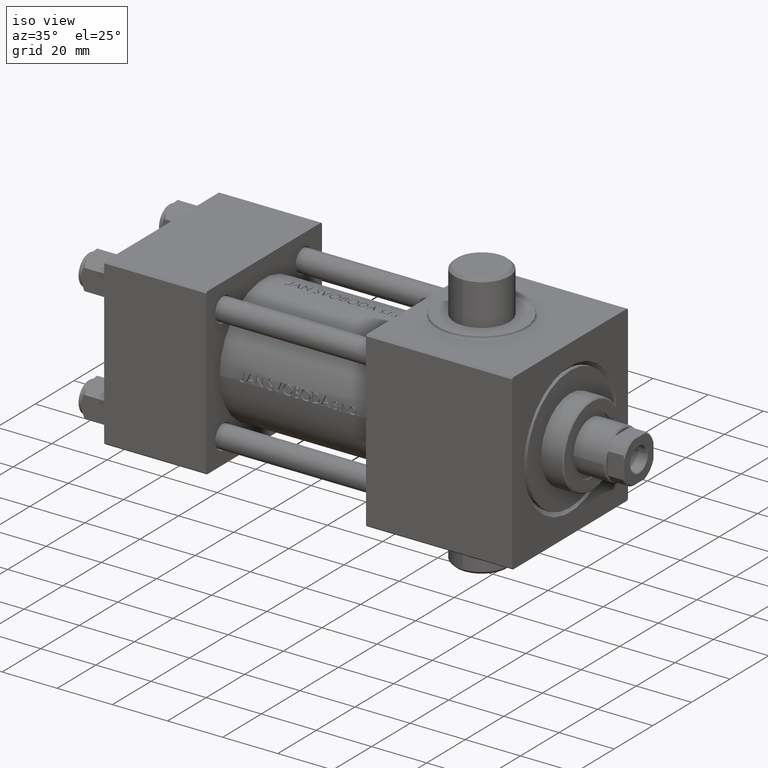
[diagram: clean part render]
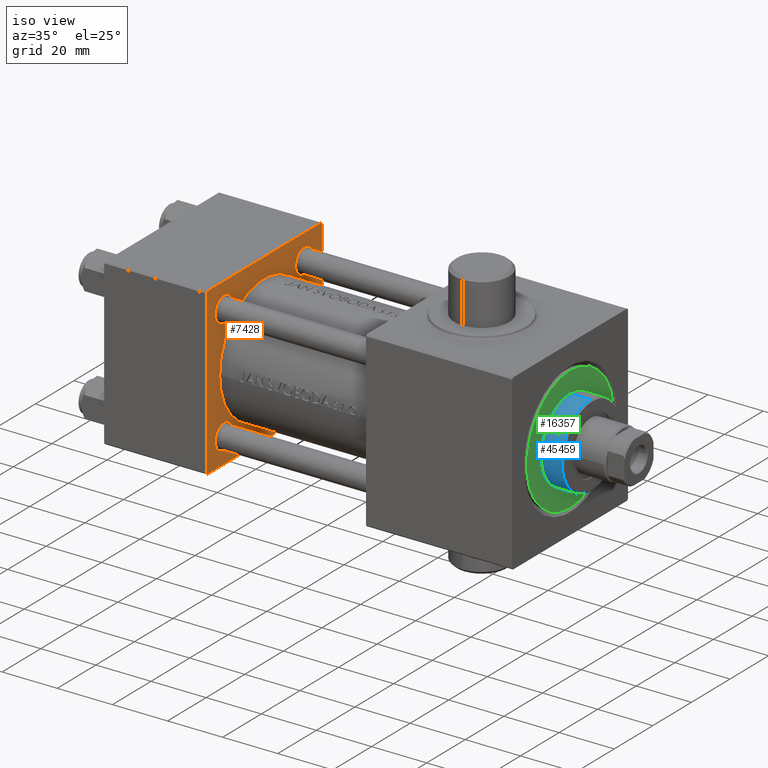
[diagram: same view with three faces highlighted in distinct colors, each labeled with its STEP entity id]
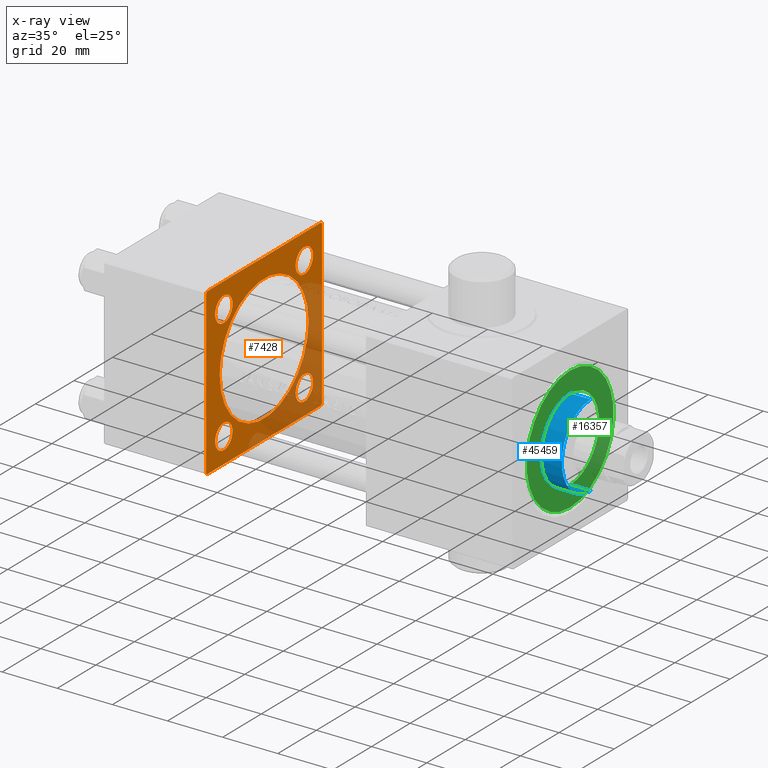
[diagram: x-ray of the same camera — body ghosted, the three highlighted faces saturated]
A machine part, iso view with three faces highlighted in distinct colors.
The next image is the same camera in x-ray (body ghosted, the three faces saturated) — at least one of them is partly hidden behind the body in this view.
Their STEP definitions:

[orange] entity #7428 — the highlighted planar face has unit normal (-1, 0, -0).
#67 = ORIENTED_EDGE ( 'NONE', *, *, #3686, .T. ) ;
#75 = CARTESIAN_POINT ( 'NONE',  ( 37.00000000000000000, -3.469446951953614189E-15, 23.00000000000000000 ) ) ;
#127 = DIRECTION ( 'NONE',  ( -1.000000000000000000, 0.000000000000000000, -0.000000000000000000 ) ) ;
#615 = AXIS2_PLACEMENT_3D ( 'NONE', #29216, #18208, #33197 ) ;
#736 = EDGE_CURVE ( 'NONE', #32184, #760, #26727, .T. ) ;
#760 = VERTEX_POINT ( 'NONE', #13759 ) ;
#784 = CARTESIAN_POINT ( 'NONE',  ( 37.00000000000000000, 20.84999999999999787, 16.34999999999998366 ) ) ;
#1944 = DIRECTION ( 'NONE',  ( 0.000000000000000000, 0.000000000000000000, 1.000000000000000000 ) ) ;
#2098 = VERTEX_POINT ( 'NONE', #75 ) ;
#2319 = VECTOR ( 'NONE', #23437, 999.9999999999998863 ) ;
#2339 = EDGE_CURVE ( 'NONE', #34306, #34837, #14060, .T. ) ;
#2457 = FACE_OUTER_BOUND ( 'NONE', #19431, .T. ) ;
#2641 = VERTEX_POINT ( 'NONE', #13784 ) ;
#2865 = CARTESIAN_POINT ( 'NONE',  ( 37.00000000000000000, -29.50000000000001066, -30.00000000000000711 ) ) ;
#3543 = AXIS2_PLACEMENT_3D ( 'NONE', #21004, #42569, #24760 ) ;
#3686 = EDGE_CURVE ( 'NONE', #17949, #20354, #24564, .T. ) ;
#3749 = AXIS2_PLACEMENT_3D ( 'NONE', #16486, #5954, #13434 ) ;
#3951 = ORIENTED_EDGE ( 'NONE', *, *, #24541, .T. ) ;
#4200 = LINE ( 'NONE', #22695, #23352 ) ;
#5173 = DIRECTION ( 'NONE',  ( 0.000000000000000000, -0.7071067811865474617, 0.7071067811865474617 ) ) ;
#5442 = EDGE_CURVE ( 'NONE', #35846, #34704, #24605, .T. ) ;
#5493 = FACE_BOUND ( 'NONE', #44097, .T. ) ;
#5954 = DIRECTION ( 'NONE',  ( -1.000000000000000000, 0.000000000000000000, -0.000000000000000000 ) ) ;
#6006 = CARTESIAN_POINT ( 'NONE',  ( 37.00000000000000000, -29.50000000000000000, -30.00000000000000711 ) ) ;
#6017 = ORIENTED_EDGE ( 'NONE', *, *, #736, .T. ) ;
#6246 = CARTESIAN_POINT ( 'NONE',  ( 37.00000000000000000, -20.84999999999999076, 25.35000000000002274 ) ) ;
#6326 = LINE ( 'NONE', #33991, #2319 ) ;
#6407 = FACE_BOUND ( 'NONE', #40236, .T. ) ;
#6931 = ORIENTED_EDGE ( 'NONE', *, *, #15888, .T. ) ;
#7213 = VERTEX_POINT ( 'NONE', #6006 ) ;
#7428 = ADVANCED_FACE ( 'NONE', ( #6407, #41561, #38048, #5493, #30795, #2457 ), #34075, .F. ) ;
#7700 = CARTESIAN_POINT ( 'NONE',  ( 37.00000000000000000, -30.00000000000000000, 29.49999999999999289 ) ) ;
#7989 = DIRECTION ( 'NONE',  ( 0.000000000000000000, 0.000000000000000000, 1.000000000000000000 ) ) ;
#8825 = CIRCLE ( 'NONE', #615, 4.500000000000017764 ) ;
#9265 = CARTESIAN_POINT ( 'NONE',  ( 37.00000000000000000, 20.84999999999999787, -20.85000000000000142 ) ) ;
#9300 = ORIENTED_EDGE ( 'NONE', *, *, #26738, .T. ) ;
#9422 = DIRECTION ( 'NONE',  ( -1.000000000000000000, 0.000000000000000000, -0.000000000000000000 ) ) ;
#9537 = VECTOR ( 'NONE', #5173, 1000.000000000000114 ) ;
#9643 = ORIENTED_EDGE ( 'NONE', *, *, #2339, .T. ) ;
#10054 = ORIENTED_EDGE ( 'NONE', *, *, #45348, .T. ) ;
#10233 = CARTESIAN_POINT ( 'NONE',  ( 37.00000000000000000, -29.49999999999998579, 29.99999999999999289 ) ) ;
#11241 = VERTEX_POINT ( 'NONE', #15436 ) ;
#11254 = DIRECTION ( 'NONE',  ( 1.000000000000000000, -0.000000000000000000, 0.000000000000000000 ) ) ;
#11368 = DIRECTION ( 'NONE',  ( -1.000000000000000000, 0.000000000000000000, -0.000000000000000000 ) ) ;
#11414 = AXIS2_PLACEMENT_3D ( 'NONE', #44854, #34093, #31047 ) ;
#11737 = DIRECTION ( 'NONE',  ( -1.000000000000000000, 0.000000000000000000, -0.000000000000000000 ) ) ;
#12100 = VECTOR ( 'NONE', #38298, 1000.000000000000000 ) ;
#12799 = CARTESIAN_POINT ( 'NONE',  ( 37.00000000000000000, -30.00000000000000000, -29.50000000000001776 ) ) ;
#13434 = DIRECTION ( 'NONE',  ( -0.000000000000000000, 0.000000000000000000, 1.000000000000000000 ) ) ;
#13759 = CARTESIAN_POINT ( 'NONE',  ( 37.00000000000000000, 20.84999999999999787, -25.35000000000001918 ) ) ;
#13784 = CARTESIAN_POINT ( 'NONE',  ( 37.00000000000000000, 29.99999999999999289, 29.50000000000000000 ) ) ;
#13821 = EDGE_CURVE ( 'NONE', #11241, #32240, #6326, .T. ) ;
#13867 = CARTESIAN_POINT ( 'NONE',  ( 37.00000000000000000, -20.84999999999999076, -25.35000000000002274 ) ) ;
#14060 = LINE ( 'NONE', #18274, #23813 ) ;
#15009 = CIRCLE ( 'NONE', #35227, 4.500000000000017764 ) ;
#15436 = CARTESIAN_POINT ( 'NONE',  ( 37.00000000000000000, 29.49999999999997868, -30.00000000000000000 ) ) ;
#15888 = EDGE_CURVE ( 'NONE', #26599, #34306, #31508, .T. ) ;
#15989 = AXIS2_PLACEMENT_3D ( 'NONE', #32217, #127, #21420 ) ;
#16486 = CARTESIAN_POINT ( 'NONE',  ( 37.00000000000000000, 0.000000000000000000, 0.000000000000000000 ) ) ;
#16704 = CARTESIAN_POINT ( 'NONE',  ( 37.00000000000000000, -20.84999999999999076, -16.34999999999998721 ) ) ;
#16916 = DIRECTION ( 'NONE',  ( 0.000000000000000000, 0.7071067811865474617, -0.7071067811865474617 ) ) ;
#17430 = CIRCLE ( 'NONE', #40649, 4.500000000000017764 ) ;
#17490 = CARTESIAN_POINT ( 'NONE',  ( 37.00000000000000000, -20.84999999999999076, 20.85000000000000497 ) ) ;
#17641 = EDGE_CURVE ( 'NONE', #2641, #32240, #32530, .T. ) ;
#17949 = VERTEX_POINT ( 'NONE', #6246 ) ;
#17968 = CARTESIAN_POINT ( 'NONE',  ( 37.00000000000000000, 29.49999999999999289, 30.00000000000000000 ) ) ;
#18208 = DIRECTION ( 'NONE',  ( -1.000000000000000000, 0.000000000000000000, -0.000000000000000000 ) ) ;
#18274 = CARTESIAN_POINT ( 'NONE',  ( 37.00000000000000000, -30.00000000000000000, 29.49999999999999289 ) ) ;
#18280 = EDGE_CURVE ( 'NONE', #23648, #2098, #22627, .T. ) ;
#18859 = EDGE_LOOP ( 'NONE', ( #31270, #67 ) ) ;
#19136 = EDGE_LOOP ( 'NONE', ( #38499, #20048 ) ) ;
#19431 = EDGE_LOOP ( 'NONE', ( #37179, #45077, #21610, #3951, #6931, #9643, #19837, #26753 ) ) ;
#19837 = ORIENTED_EDGE ( 'NONE', *, *, #36297, .T. ) ;
#20048 = ORIENTED_EDGE ( 'NONE', *, *, #18280, .F. ) ;
#20354 = VERTEX_POINT ( 'NONE', #40333 ) ;
#21004 = CARTESIAN_POINT ( 'NONE',  ( 37.00000000000000000, 20.84999999999999787, -20.85000000000000142 ) ) ;
#21031 = CARTESIAN_POINT ( 'NONE',  ( 37.00000000000000000, 29.99999999999999289, 30.00000000000000000 ) ) ;
#21420 = DIRECTION ( 'NONE',  ( 0.000000000000000000, 0.000000000000000000, 1.000000000000000000 ) ) ;
#21610 = ORIENTED_EDGE ( 'NONE', *, *, #17641, .F. ) ;
#21738 = VECTOR ( 'NONE', #16916, 1000.000000000000114 ) ;
#22627 = CIRCLE ( 'NONE', #24139, 23.00000000000000000 ) ;
#22695 = CARTESIAN_POINT ( 'NONE',  ( 37.00000000000000000, -30.00000000000000000, 29.99999999999999289 ) ) ;
#23352 = VECTOR ( 'NONE', #39814, 1000.000000000000000 ) ;
#23437 = DIRECTION ( 'NONE',  ( -0.000000000000000000, 0.7071067811865574537, 0.7071067811865376918 ) ) ;
#23648 = VERTEX_POINT ( 'NONE', #37180 ) ;
#23813 = VECTOR ( 'NONE', #45932, 1000.000000000000114 ) ;
#23822 = EDGE_CURVE ( 'NONE', #20354, #17949, #31045, .T. ) ;
#24139 = AXIS2_PLACEMENT_3D ( 'NONE', #39149, #11254, #32119 ) ;
#24541 = EDGE_CURVE ( 'NONE', #2641, #26599, #37262, .T. ) ;
#24564 = CIRCLE ( 'NONE', #32839, 4.500000000000017764 ) ;
#24605 = CIRCLE ( 'NONE', #45578, 4.500000000000017764 ) ;
#24760 = DIRECTION ( 'NONE',  ( 0.000000000000000000, 0.000000000000000000, 1.000000000000000000 ) ) ;
#25769 = VERTEX_POINT ( 'NONE', #37622 ) ;
#26599 = VERTEX_POINT ( 'NONE', #17968 ) ;
#26722 = CARTESIAN_POINT ( 'NONE',  ( 37.00000000000000000, 29.49999999999999289, 30.00000000000000000 ) ) ;
#26727 = CIRCLE ( 'NONE', #3543, 4.500000000000017764 ) ;
#26738 = EDGE_CURVE ( 'NONE', #25769, #41342, #8825, .T. ) ;
#26753 = ORIENTED_EDGE ( 'NONE', *, *, #32931, .T. ) ;
#29005 = DIRECTION ( 'NONE',  ( 0.000000000000000000, 0.000000000000000000, -1.000000000000000000 ) ) ;
#29216 = CARTESIAN_POINT ( 'NONE',  ( 37.00000000000000000, 20.84999999999999787, 20.85000000000000142 ) ) ;
#29557 = CARTESIAN_POINT ( 'NONE',  ( 37.00000000000000000, -20.84999999999999076, -20.85000000000000497 ) ) ;
#29676 = EDGE_LOOP ( 'NONE', ( #38035, #6017 ) ) ;
#30150 = ORIENTED_EDGE ( 'NONE', *, *, #5442, .T. ) ;
#30683 = CARTESIAN_POINT ( 'NONE',  ( 37.00000000000000000, 20.84999999999999787, -16.34999999999998366 ) ) ;
#30795 = FACE_BOUND ( 'NONE', #19136, .T. ) ;
#31045 = CIRCLE ( 'NONE', #44462, 4.500000000000017764 ) ;
#31047 = DIRECTION ( 'NONE',  ( 0.000000000000000000, 0.000000000000000000, 1.000000000000000000 ) ) ;
#31140 = VERTEX_POINT ( 'NONE', #12799 ) ;
#31270 = ORIENTED_EDGE ( 'NONE', *, *, #23822, .T. ) ;
#31508 = LINE ( 'NONE', #45784, #12100 ) ;
#32119 = DIRECTION ( 'NONE',  ( 0.000000000000000000, 0.000000000000000000, 1.000000000000000000 ) ) ;
#32184 = VERTEX_POINT ( 'NONE', #30683 ) ;
#32217 = CARTESIAN_POINT ( 'NONE',  ( 37.00000000000000000, 20.84999999999999787, 20.85000000000000142 ) ) ;
#32240 = VERTEX_POINT ( 'NONE', #39265 ) ;
#32530 = LINE ( 'NONE', #21031, #43563 ) ;
#32688 = CARTESIAN_POINT ( 'NONE',  ( 37.00000000000000000, -20.84999999999999076, 20.85000000000000497 ) ) ;
#32785 = EDGE_CURVE ( 'NONE', #11241, #7213, #33573, .T. ) ;
#32839 = AXIS2_PLACEMENT_3D ( 'NONE', #17490, #46066, #33114 ) ;
#32872 = DIRECTION ( 'NONE',  ( 0.000000000000000000, -1.000000000000000000, -1.156482317317871725E-16 ) ) ;
#32931 = EDGE_CURVE ( 'NONE', #31140, #7213, #41291, .T. ) ;
#33114 = DIRECTION ( 'NONE',  ( 0.000000000000000000, 0.000000000000000000, 1.000000000000000000 ) ) ;
#33197 = DIRECTION ( 'NONE',  ( 0.000000000000000000, 0.000000000000000000, 1.000000000000000000 ) ) ;
#33573 = LINE ( 'NONE', #40838, #40441 ) ;
#33991 = CARTESIAN_POINT ( 'NONE',  ( 37.00000000000000000, 29.99999999999999289, -29.50000000000000000 ) ) ;
#34075 = PLANE ( 'NONE',  #3749 ) ;
#34093 = DIRECTION ( 'NONE',  ( 1.000000000000000000, -0.000000000000000000, 0.000000000000000000 ) ) ;
#34306 = VERTEX_POINT ( 'NONE', #10233 ) ;
#34558 = EDGE_CURVE ( 'NONE', #760, #32184, #15009, .T. ) ;
#34704 = VERTEX_POINT ( 'NONE', #16704 ) ;
#34837 = VERTEX_POINT ( 'NONE', #7700 ) ;
#35227 = AXIS2_PLACEMENT_3D ( 'NONE', #9265, #37384, #41822 ) ;
#35846 = VERTEX_POINT ( 'NONE', #13867 ) ;
#36182 = CIRCLE ( 'NONE', #15989, 4.500000000000017764 ) ;
#36297 = EDGE_CURVE ( 'NONE', #34837, #31140, #4200, .T. ) ;
#37179 = ORIENTED_EDGE ( 'NONE', *, *, #32785, .F. ) ;
#37180 = CARTESIAN_POINT ( 'NONE',  ( 37.00000000000000000, -6.527593139147022314E-16, -23.00000000000000000 ) ) ;
#37262 = LINE ( 'NONE', #26722, #9537 ) ;
#37384 = DIRECTION ( 'NONE',  ( -1.000000000000000000, 0.000000000000000000, -0.000000000000000000 ) ) ;
#37622 = CARTESIAN_POINT ( 'NONE',  ( 37.00000000000000000, 20.84999999999999787, 25.35000000000001918 ) ) ;
#38035 = ORIENTED_EDGE ( 'NONE', *, *, #34558, .T. ) ;
#38048 = FACE_BOUND ( 'NONE', #18859, .T. ) ;
#38251 = EDGE_CURVE ( 'NONE', #2098, #23648, #39846, .T. ) ;
#38298 = DIRECTION ( 'NONE',  ( 0.000000000000000000, -1.000000000000000000, -1.156482317317871725E-16 ) ) ;
#38499 = ORIENTED_EDGE ( 'NONE', *, *, #38251, .F. ) ;
#39149 = CARTESIAN_POINT ( 'NONE',  ( 37.00000000000000000, -3.469446951953614189E-15, 0.000000000000000000 ) ) ;
#39265 = CARTESIAN_POINT ( 'NONE',  ( 37.00000000000000000, 29.99999999999999289, -29.50000000000000000 ) ) ;
#39487 = DIRECTION ( 'NONE',  ( 0.000000000000000000, 0.000000000000000000, 1.000000000000000000 ) ) ;
#39814 = DIRECTION ( 'NONE',  ( 0.000000000000000000, 0.000000000000000000, -1.000000000000000000 ) ) ;
#39846 = CIRCLE ( 'NONE', #11414, 23.00000000000000000 ) ;
#40236 = EDGE_LOOP ( 'NONE', ( #30150, #45607 ) ) ;
#40333 = CARTESIAN_POINT ( 'NONE',  ( 37.00000000000000000, -20.84999999999999076, 16.34999999999998721 ) ) ;
#40441 = VECTOR ( 'NONE', #32872, 1000.000000000000000 ) ;
#40649 = AXIS2_PLACEMENT_3D ( 'NONE', #29557, #11737, #7989 ) ;
#40834 = CARTESIAN_POINT ( 'NONE',  ( 37.00000000000000000, -20.84999999999999076, -20.85000000000000497 ) ) ;
#40838 = CARTESIAN_POINT ( 'NONE',  ( 37.00000000000000000, 29.99999999999999289, -30.00000000000000000 ) ) ;
#41291 = LINE ( 'NONE', #2865, #21738 ) ;
#41342 = VERTEX_POINT ( 'NONE', #784 ) ;
#41561 = FACE_BOUND ( 'NONE', #29676, .T. ) ;
#41822 = DIRECTION ( 'NONE',  ( 0.000000000000000000, 0.000000000000000000, 1.000000000000000000 ) ) ;
#42569 = DIRECTION ( 'NONE',  ( -1.000000000000000000, 0.000000000000000000, -0.000000000000000000 ) ) ;
#43563 = VECTOR ( 'NONE', #29005, 1000.000000000000000 ) ;
#43732 = EDGE_CURVE ( 'NONE', #34704, #35846, #17430, .T. ) ;
#44097 = EDGE_LOOP ( 'NONE', ( #10054, #9300 ) ) ;
#44462 = AXIS2_PLACEMENT_3D ( 'NONE', #32688, #11368, #39487 ) ;
#44854 = CARTESIAN_POINT ( 'NONE',  ( 37.00000000000000000, -3.469446951953614189E-15, 0.000000000000000000 ) ) ;
#45077 = ORIENTED_EDGE ( 'NONE', *, *, #13821, .T. ) ;
#45348 = EDGE_CURVE ( 'NONE', #41342, #25769, #36182, .T. ) ;
#45578 = AXIS2_PLACEMENT_3D ( 'NONE', #40834, #9422, #1944 ) ;
#45607 = ORIENTED_EDGE ( 'NONE', *, *, #43732, .T. ) ;
#45784 = CARTESIAN_POINT ( 'NONE',  ( 37.00000000000000000, 29.99999999999999289, 30.00000000000000000 ) ) ;
#45932 = DIRECTION ( 'NONE',  ( -0.000000000000000000, -0.7071067811865474617, -0.7071067811865474617 ) ) ;
#46066 = DIRECTION ( 'NONE',  ( -1.000000000000000000, 0.000000000000000000, -0.000000000000000000 ) ) ;

[blue] entity #45459 — the highlighted cylindrical surface (partial cylindrical patch) has radius 15 mm, axis along (-1, -0, 0).
#1418 = VECTOR ( 'NONE', #41406, 1000.000000000000000 ) ;
#3666 = EDGE_CURVE ( 'NONE', #40338, #24769, #30631, .T. ) ;
#5533 = CARTESIAN_POINT ( 'NONE',  ( 15.00000000000000000, 1.836970198721029589E-15, 34.69999999999999574 ) ) ;
#8639 = DIRECTION ( 'NONE',  ( 1.000000000000000000, 0.000000000000000000, 0.000000000000000000 ) ) ;
#9488 = CARTESIAN_POINT ( 'NONE',  ( -15.00000000000000000, 0.000000000000000000, 26.69999999999999929 ) ) ;
#10805 = CIRCLE ( 'NONE', #36972, 15.00000000000000000 ) ;
#12508 = DIRECTION ( 'NONE',  ( -0.000000000000000000, -0.000000000000000000, -1.000000000000000000 ) ) ;
#15112 = ORIENTED_EDGE ( 'NONE', *, *, #3666, .T. ) ;
#15116 = VECTOR ( 'NONE', #19119, 1000.000000000000000 ) ;
#18058 = AXIS2_PLACEMENT_3D ( 'NONE', #44574, #19734, #34735 ) ;
#18432 = ORIENTED_EDGE ( 'NONE', *, *, #22381, .T. ) ;
#19119 = DIRECTION ( 'NONE',  ( -0.000000000000000000, -0.000000000000000000, -1.000000000000000000 ) ) ;
#19734 = DIRECTION ( 'NONE',  ( 0.000000000000000000, 0.000000000000000000, 1.000000000000000000 ) ) ;
#20338 = DIRECTION ( 'NONE',  ( 0.000000000000000000, 0.000000000000000000, -1.000000000000000000 ) ) ;
#22108 = FACE_OUTER_BOUND ( 'NONE', #43012, .T. ) ;
#22381 = EDGE_CURVE ( 'NONE', #27644, #40338, #10805, .T. ) ;
#22427 = CARTESIAN_POINT ( 'NONE',  ( 15.00000000000000000, 1.836970198721029589E-15, 34.19999999999999574 ) ) ;
#23722 = CARTESIAN_POINT ( 'NONE',  ( -15.00000000000000000, 0.000000000000000000, 34.19999999999999574 ) ) ;
#24769 = VERTEX_POINT ( 'NONE', #9488 ) ;
#27124 = CARTESIAN_POINT ( 'NONE',  ( -15.00000000000000000, 0.000000000000000000, 34.69999999999999574 ) ) ;
#27644 = VERTEX_POINT ( 'NONE', #22427 ) ;
#30631 = LINE ( 'NONE', #27124, #1418 ) ;
#31444 = VERTEX_POINT ( 'NONE', #32907 ) ;
#32907 = CARTESIAN_POINT ( 'NONE',  ( 15.00000000000000000, 1.836970198721029589E-15, 26.69999999999999929 ) ) ;
#33366 = CARTESIAN_POINT ( 'NONE',  ( 0.000000000000000000, 0.000000000000000000, 34.69999999999999574 ) ) ;
#33836 = DIRECTION ( 'NONE',  ( -1.000000000000000000, 0.000000000000000000, 0.000000000000000000 ) ) ;
#34725 = AXIS2_PLACEMENT_3D ( 'NONE', #33366, #12508, #33836 ) ;
#34735 = DIRECTION ( 'NONE',  ( 1.000000000000000000, 0.000000000000000000, 0.000000000000000000 ) ) ;
#34879 = ORIENTED_EDGE ( 'NONE', *, *, #39433, .T. ) ;
#35899 = ORIENTED_EDGE ( 'NONE', *, *, #36726, .F. ) ;
#36726 = EDGE_CURVE ( 'NONE', #27644, #31444, #37627, .T. ) ;
#36972 = AXIS2_PLACEMENT_3D ( 'NONE', #38153, #20338, #8639 ) ;
#37627 = LINE ( 'NONE', #5533, #15116 ) ;
#38153 = CARTESIAN_POINT ( 'NONE',  ( 0.000000000000000000, 0.000000000000000000, 34.19999999999999574 ) ) ;
#39433 = EDGE_CURVE ( 'NONE', #24769, #31444, #43470, .T. ) ;
#40338 = VERTEX_POINT ( 'NONE', #23722 ) ;
#40861 = CYLINDRICAL_SURFACE ( 'NONE', #34725, 15.00000000000000000 ) ;
#41406 = DIRECTION ( 'NONE',  ( -0.000000000000000000, -0.000000000000000000, -1.000000000000000000 ) ) ;
#43012 = EDGE_LOOP ( 'NONE', ( #35899, #18432, #15112, #34879 ) ) ;
#43470 = CIRCLE ( 'NONE', #18058, 15.00000000000000000 ) ;
#44574 = CARTESIAN_POINT ( 'NONE',  ( 0.000000000000000000, 0.000000000000000000, 26.69999999999999929 ) ) ;
#45459 = ADVANCED_FACE ( 'NONE', ( #22108 ), #40861, .T. ) ;

[green] entity #16357 — the highlighted planar face has unit normal (1, 0, 0).
#887 = CIRCLE ( 'NONE', #17323, 22.50000000000000355 ) ;
#2489 = AXIS2_PLACEMENT_3D ( 'NONE', #36747, #28400, #18940 ) ;
#6946 = CARTESIAN_POINT ( 'NONE',  ( -22.50000000000000355, 0.000000000000000000, 26.69999999999999929 ) ) ;
#8054 = CARTESIAN_POINT ( 'NONE',  ( 0.000000000000000000, 0.000000000000000000, 26.69999999999999929 ) ) ;
#8371 = EDGE_CURVE ( 'NONE', #31444, #24769, #41937, .T. ) ;
#9488 = CARTESIAN_POINT ( 'NONE',  ( -15.00000000000000000, 0.000000000000000000, 26.69999999999999929 ) ) ;
#11263 = AXIS2_PLACEMENT_3D ( 'NONE', #8054, #19293, #40862 ) ;
#13600 = FACE_OUTER_BOUND ( 'NONE', #23707, .T. ) ;
#14944 = ORIENTED_EDGE ( 'NONE', *, *, #40074, .T. ) ;
#16357 = ADVANCED_FACE ( 'NONE', ( #45458, #13600 ), #19704, .T. ) ;
#17323 = AXIS2_PLACEMENT_3D ( 'NONE', #22681, #29484, #40488 ) ;
#17958 = CARTESIAN_POINT ( 'NONE',  ( 22.50000000000000355, 2.755455298081545172E-15, 26.69999999999999929 ) ) ;
#18058 = AXIS2_PLACEMENT_3D ( 'NONE', #44574, #19734, #34735 ) ;
#18940 = DIRECTION ( 'NONE',  ( 1.000000000000000000, 0.000000000000000000, 0.000000000000000000 ) ) ;
#19293 = DIRECTION ( 'NONE',  ( 0.000000000000000000, 0.000000000000000000, 1.000000000000000000 ) ) ;
#19334 = EDGE_CURVE ( 'NONE', #42899, #25646, #19684, .T. ) ;
#19684 = CIRCLE ( 'NONE', #2489, 22.50000000000000355 ) ;
#19704 = PLANE ( 'NONE',  #39791 ) ;
#19734 = DIRECTION ( 'NONE',  ( 0.000000000000000000, 0.000000000000000000, 1.000000000000000000 ) ) ;
#20394 = DIRECTION ( 'NONE',  ( 0.000000000000000000, 0.000000000000000000, 1.000000000000000000 ) ) ;
#22681 = CARTESIAN_POINT ( 'NONE',  ( 0.000000000000000000, 0.000000000000000000, 26.69999999999999929 ) ) ;
#23707 = EDGE_LOOP ( 'NONE', ( #25116, #14944 ) ) ;
#24769 = VERTEX_POINT ( 'NONE', #9488 ) ;
#25116 = ORIENTED_EDGE ( 'NONE', *, *, #19334, .T. ) ;
#25646 = VERTEX_POINT ( 'NONE', #17958 ) ;
#25693 = ORIENTED_EDGE ( 'NONE', *, *, #39433, .F. ) ;
#28400 = DIRECTION ( 'NONE',  ( 0.000000000000000000, 0.000000000000000000, 1.000000000000000000 ) ) ;
#29484 = DIRECTION ( 'NONE',  ( 0.000000000000000000, 0.000000000000000000, 1.000000000000000000 ) ) ;
#31444 = VERTEX_POINT ( 'NONE', #32907 ) ;
#32907 = CARTESIAN_POINT ( 'NONE',  ( 15.00000000000000000, 1.836970198721029589E-15, 26.69999999999999929 ) ) ;
#34461 = CARTESIAN_POINT ( 'NONE',  ( 0.000000000000000000, 0.000000000000000000, 26.69999999999999929 ) ) ;
#34735 = DIRECTION ( 'NONE',  ( 1.000000000000000000, 0.000000000000000000, 0.000000000000000000 ) ) ;
#34952 = EDGE_LOOP ( 'NONE', ( #25693, #44200 ) ) ;
#36747 = CARTESIAN_POINT ( 'NONE',  ( 0.000000000000000000, 0.000000000000000000, 26.69999999999999929 ) ) ;
#39433 = EDGE_CURVE ( 'NONE', #24769, #31444, #43470, .T. ) ;
#39791 = AXIS2_PLACEMENT_3D ( 'NONE', #34461, #20394, #41260 ) ;
#40074 = EDGE_CURVE ( 'NONE', #25646, #42899, #887, .T. ) ;
#40488 = DIRECTION ( 'NONE',  ( 1.000000000000000000, 0.000000000000000000, 0.000000000000000000 ) ) ;
#40862 = DIRECTION ( 'NONE',  ( 1.000000000000000000, 0.000000000000000000, 0.000000000000000000 ) ) ;
#41260 = DIRECTION ( 'NONE',  ( 1.000000000000000000, 0.000000000000000000, -0.000000000000000000 ) ) ;
#41937 = CIRCLE ( 'NONE', #11263, 15.00000000000000000 ) ;
#42899 = VERTEX_POINT ( 'NONE', #6946 ) ;
#43470 = CIRCLE ( 'NONE', #18058, 15.00000000000000000 ) ;
#44200 = ORIENTED_EDGE ( 'NONE', *, *, #8371, .F. ) ;
#44574 = CARTESIAN_POINT ( 'NONE',  ( 0.000000000000000000, 0.000000000000000000, 26.69999999999999929 ) ) ;
#45458 = FACE_BOUND ( 'NONE', #34952, .T. ) ;